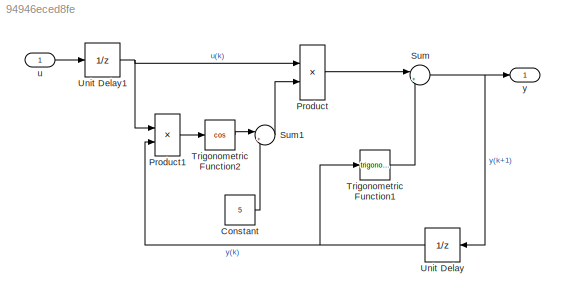
MODEL slx_94946eced8fe
KIND model
CONFIG AbsTol = auto
CONFIG EnableMultiTasking = off
CONFIG FixedStep = auto
CONFIG MaxStep = auto
CONFIG MinStep = auto
CONFIG RelTol = 1e-3
CONFIG SampleTimeConstraint = Unconstrained
CONFIG SolverName = VariableStepAuto
CONFIG StartTime = 0.0
CONFIG StopTime = 1000
BLOCK [Constant] Constant
  Value = 5
BLOCK [Product] Product
  RndMeth = Zero
BLOCK [Product] Product1
  RndMeth = Zero
BLOCK [Sum] Sum
  Inputs = |++
BLOCK [Sum] Sum1
  Inputs = |++
BLOCK [Trigonometry] Trigonometric Function1
BLOCK [Trigonometry] Trigonometric Function2
  Operator = cos
BLOCK [UnitDelay] Unit Delay
BLOCK [UnitDelay] Unit Delay1
BLOCK [Inport] u
BLOCK [Outport] y
LINE Constant:1 -> Sum1:2
LINE Product1:1 -> Trigonometric Function2:1
LINE Product:1 -> Sum:1
LINE Sum1:1 -> Product:2
NET Sum:1 -> Unit Delay:1, y:1
LINE Trigonometric Function1:1 -> Sum:2
LINE Trigonometric Function2:1 -> Sum1:1
NET Unit Delay1:1 -> Product1:1, Product:1
NET Unit Delay:1 -> Product1:2, Trigonometric Function1:1
LINE u:1 -> Unit Delay1:1
note: NET lines group one-source signal fan-out (src -> all destinations, sorted); 1:1 wires keep LINE
